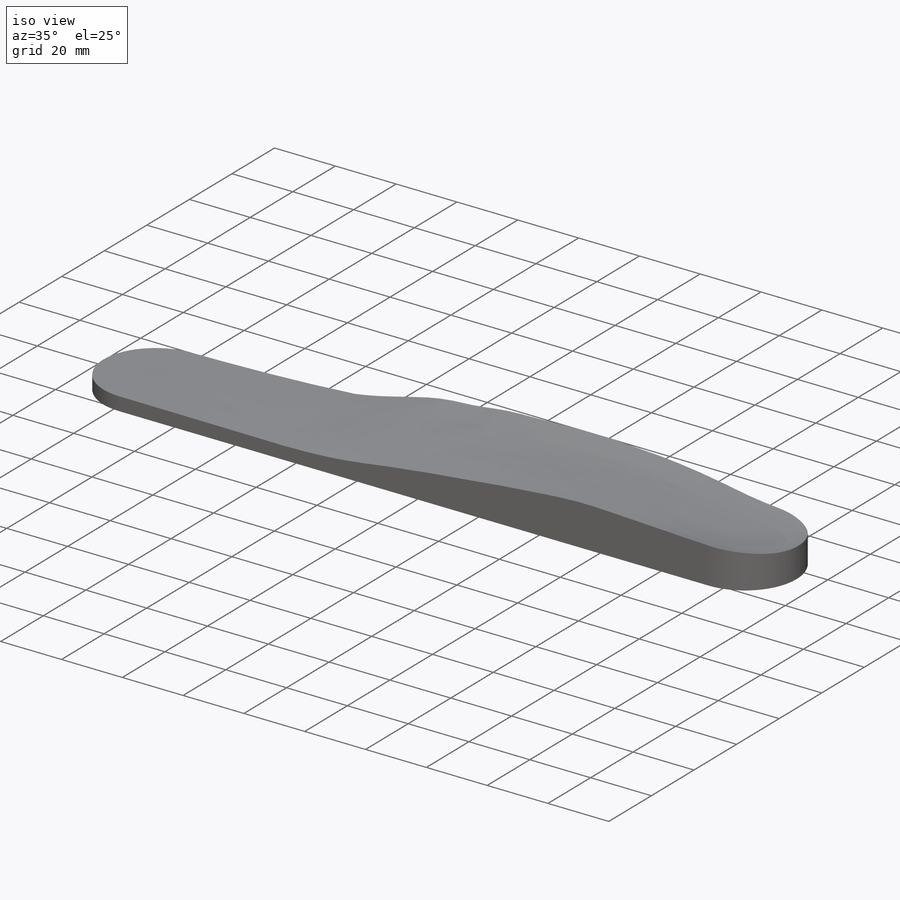
[diagram: iso view]
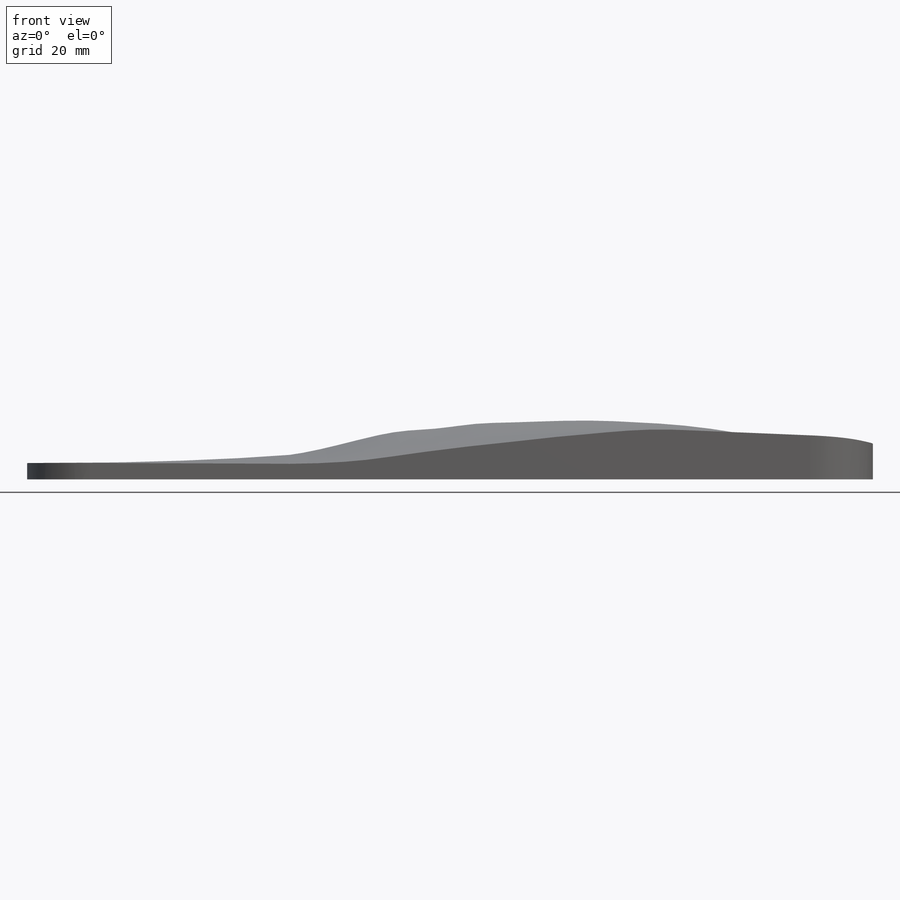
[diagram: front view]
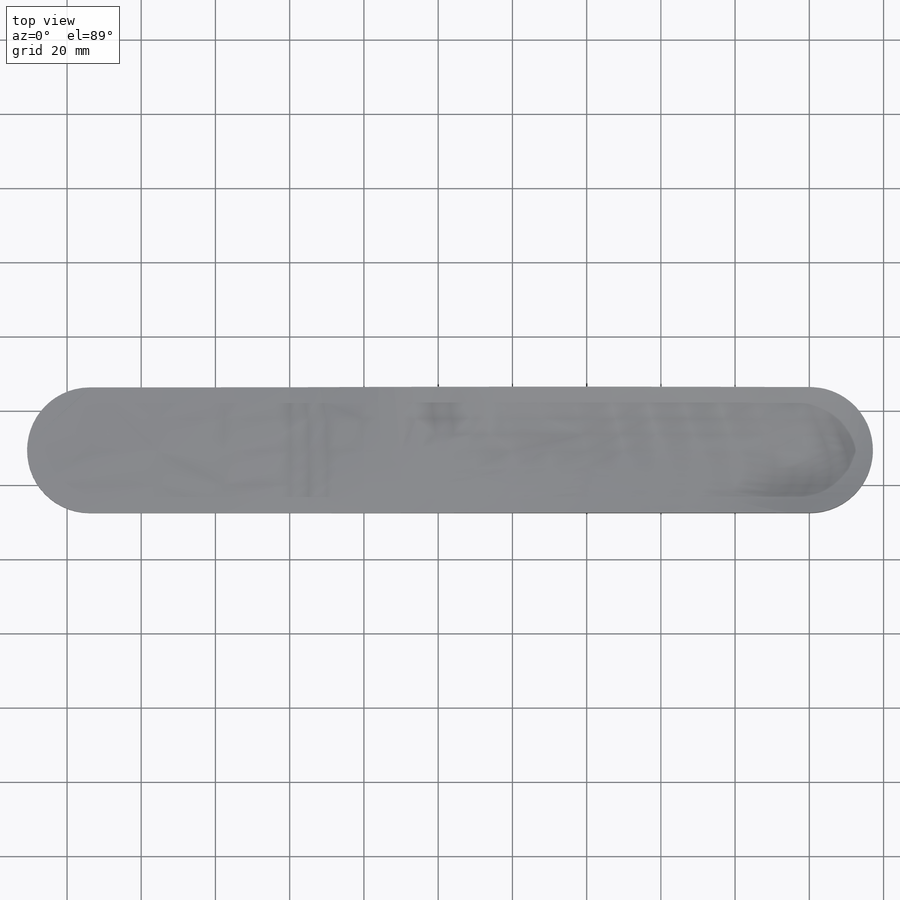
[diagram: top view]
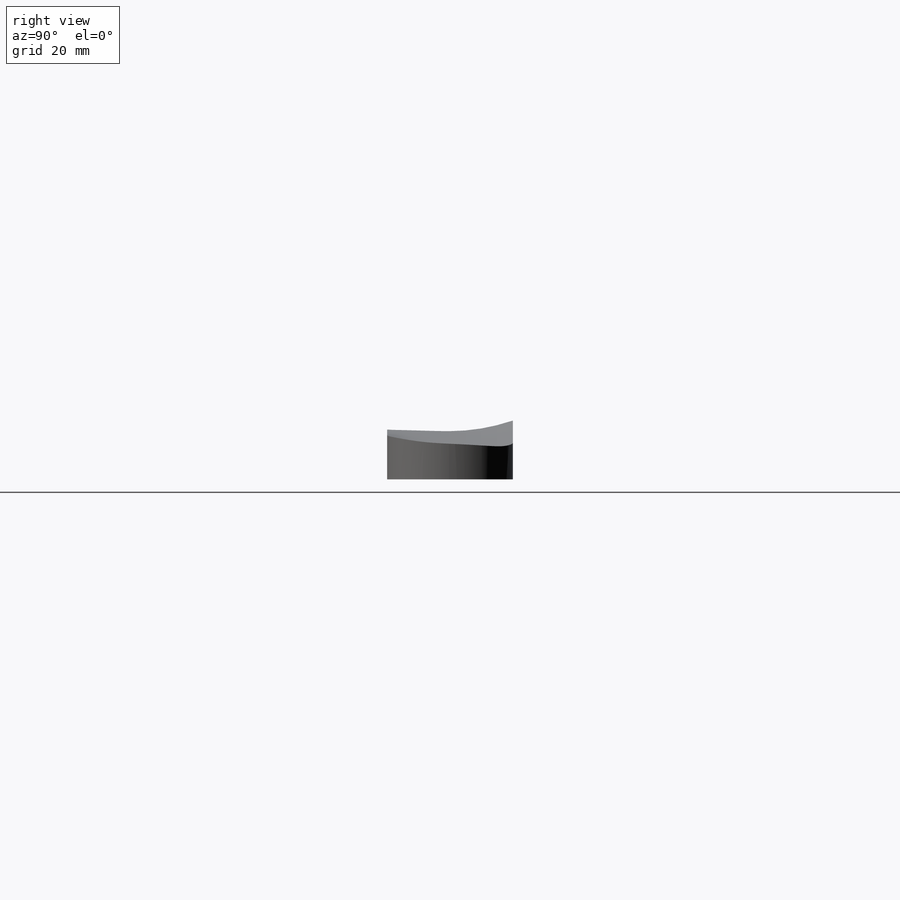
[diagram: right view]
SOLIDWORKS PART (.sldprt)
format: sldprt  version: not decoded by parser v0  size: 999,936 bytes
history: native  units: mm
features: sketch x14, plane x10, cut_extrude x3, extrude x2, fillet x2, material x1 (+11 scaffold rows collapsed)
feature tree (43):
  scaffold x11  (default folders/planes/origin — collapsed)
  material  "Silicon"
  plane  "Plane1"  Offset=10mm
  plane  "Plane2"  Offset=10mm
  plane  "Plane3"  Offset=10mm
  plane  "Plane4"  Offset=10mm
  plane  "Plane5"  Offset=10mm
  plane  "Plane6"  Offset=10mm
  plane  "Plane7"  Offset=10mm
  plane  "Plane8"  Offset=5mm
  plane  "Plane9"  Offset=5mm
  sketch  "Sketch2"  dims[c1.D1=1.0mm c1.D2=2.0mm c2.D1=4.5mm]
  sketch  "Sketch3"  dims[D1=1.0mm D2=290.0mm]
  sketch  "Sketch6"  dims[c1.D1=1.0mm c1.D2=2.0mm c1.D3=1.0mm c1.D4=2.0mm c2.D1=2.0mm]
  sketch  "Sketch10"  dims[D1=1.0mm D2=2.0mm]
  sketch  "Sketch7"  dims[D1=1.0mm D2=2.0mm]
  sketch  "Sketch8"  dims[c1.D1=1.0mm c1.D2=2.0mm c1.D3=1.0mm c1.D4=2.0mm c2.D2=2.0mm]
  sketch  "Sketch12"  dims[D1=1.0mm D2=2.0mm D3=2.0mm]
  sketch  "Sketch9"  dims[D1=1.0mm D2=2.0mm]
  sketch  "Sketch14"  dims[D1=1.0mm D2=2.0mm]
  extrude  "Boss-Extrude3"  [1 undecoded]
  sketch  "Sketch9<5>"  dims[D1=5.0mm]
  extrude  "Boss-Extrude4"  [1 undecoded]
  sketch  "Sketch2<3>"  dims[D1=5.0mm]
  sketch  "Sketch13"  dims[D1=40.0mm D2=50.0mm D3=50.0mm]
  cut_extrude  "Cut-Extrude1"  Depth=5mm
  sketch  "Sketch21"
  cut_extrude  "Cut-Extrude2"  Depth=4.37mm
  fillet  "Fillet6"  Radius=15mm
  fillet  "Fillet7"  Radius=10mm
  plane  "Plane10"  Offset=40mm
  sketch  "Sketch23"
  cut_extrude  "Cut-Extrude7"  [1 undecoded]
decode coverage: 16 of 21 modeling features carry decoded parameters
note: 3 parameter values undecoded
summary: no parameter record found for 3 features
note: suppression state not decoded; provenance and decode notes live in map.json
